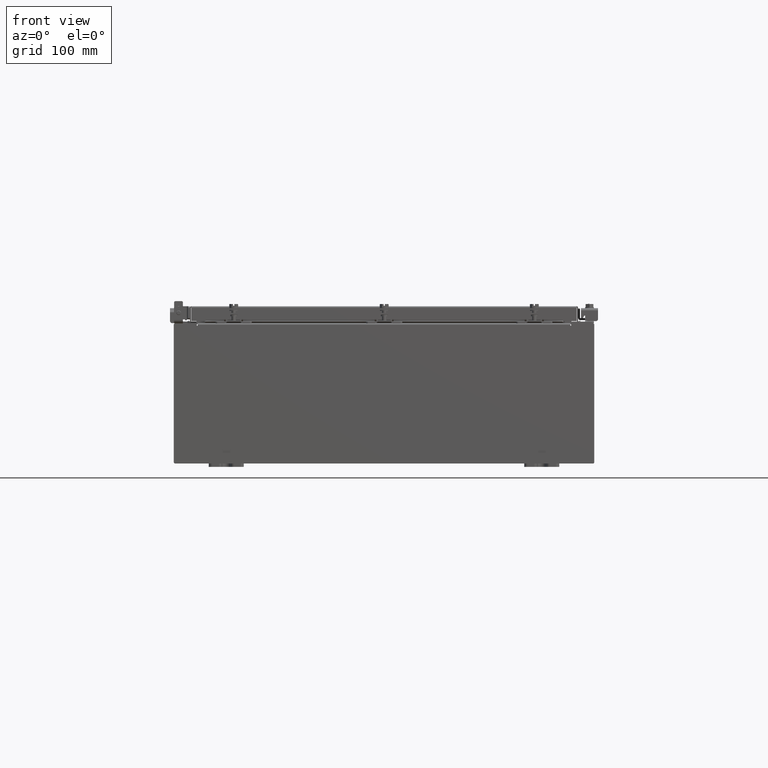
[diagram: clean part render]
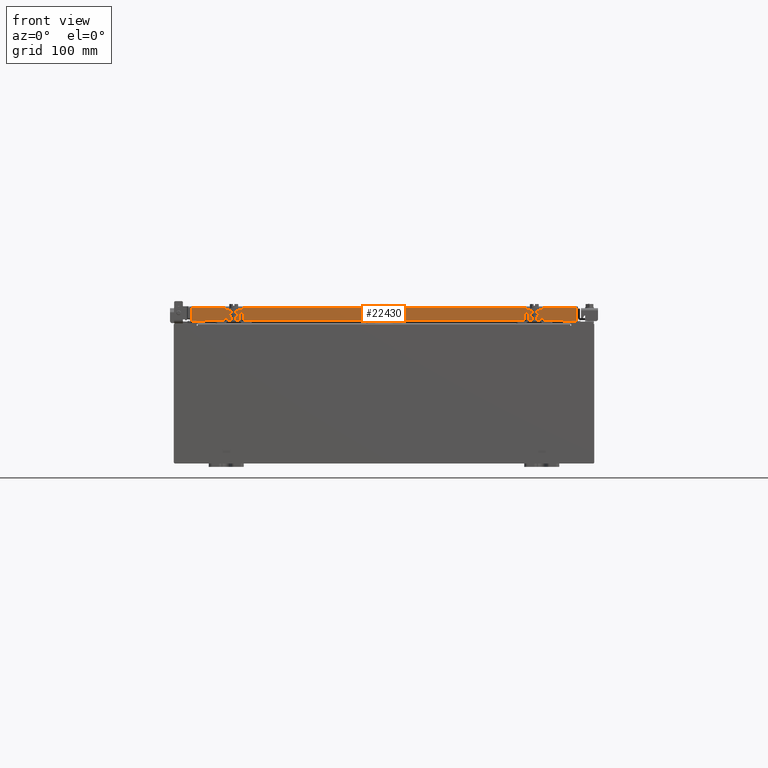
[diagram: same view with one face highlighted and labeled with its STEP entity id]
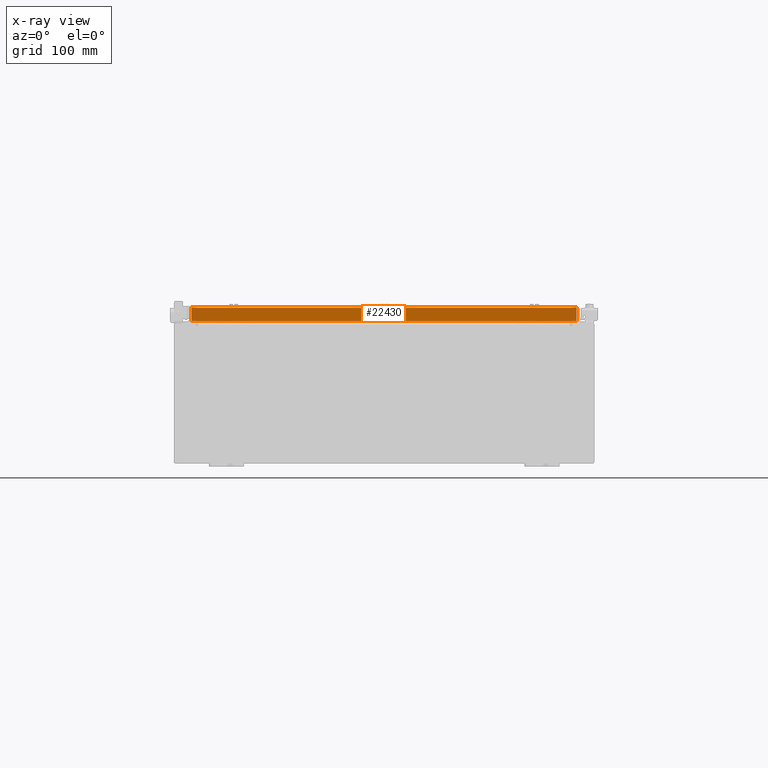
[diagram: x-ray of the same camera — body ghosted, the highlighted face saturated]
A machine part, front view. The second image highlights one B-rep face of the part: STEP entity #22430.
The next image is the same camera in x-ray: the body ghosted, the highlighted face saturated — about 0% of this face is hidden behind the body in this view.
In plain terms, the highlighted planar face has unit normal (0, 1, -0).
Its self-contained STEP definition (entity closure, byte-faithful):
#55 = CARTESIAN_POINT ( 'NONE',  ( -10.98915786437626700, -14.09399999999999900, -0.08770000000000224800 ) ) ;
#90 = VERTEX_POINT ( 'NONE', #55 ) ;
#518 = CARTESIAN_POINT ( 'NONE',  ( 10.23915786437626700, -14.09399999999999900, -0.8500000000000012000 ) ) ;
#712 = DIRECTION ( 'NONE',  ( 9.864047639155998000E-017, 1.000000000000000000, -2.818880942772360500E-015 ) ) ;
#1005 = VERTEX_POINT ( 'NONE', #17780 ) ;
#1526 = VERTEX_POINT ( 'NONE', #6283 ) ;
#2658 = EDGE_LOOP ( 'NONE', ( #6903, #8043, #7112, #15412, #20790, #11364 ) ) ;
#3532 = LINE ( 'NONE', #14443, #21977 ) ;
#3633 = DIRECTION ( 'NONE',  ( 0.0000000000000000000, -2.818880942772360500E-015, -1.000000000000000000 ) ) ;
#4704 = DIRECTION ( 'NONE',  ( -1.000000000000000000, 9.864047639156033700E-017, 1.233005954894504400E-016 ) ) ;
#4906 = LINE ( 'NONE', #7445, #9672 ) ;
#5194 = VERTEX_POINT ( 'NONE', #13281 ) ;
#5482 = VECTOR ( 'NONE', #4704, 39.37007874015748100 ) ;
#5999 = LINE ( 'NONE', #6621, #6565 ) ;
#6172 = LINE ( 'NONE', #15307, #15685 ) ;
#6283 = CARTESIAN_POINT ( 'NONE',  ( 10.98915786437626900, -14.09400000000000300, -0.8499999999999996400 ) ) ;
#6532 = DIRECTION ( 'NONE',  ( -1.000000000000000000, 9.864047639156033700E-017, 1.233005954894504400E-016 ) ) ;
#6565 = VECTOR ( 'NONE', #6532, 39.37007874015748100 ) ;
#6621 = CARTESIAN_POINT ( 'NONE',  ( 11.07799999999999800, -14.09400000000000300, -0.8499999999999996400 ) ) ;
#6903 = ORIENTED_EDGE ( 'NONE', *, *, #22809, .F. ) ;
#7112 = ORIENTED_EDGE ( 'NONE', *, *, #15005, .F. ) ;
#7445 = CARTESIAN_POINT ( 'NONE',  ( 11.07799999999999900, -14.09400000000000100, -0.08770000000000224800 ) ) ;
#8043 = ORIENTED_EDGE ( 'NONE', *, *, #14842, .T. ) ;
#8127 = DIRECTION ( 'NONE',  ( -1.000000000000000000, 0.0000000000000000000, 0.0000000000000000000 ) ) ;
#8520 = VERTEX_POINT ( 'NONE', #518 ) ;
#9672 = VECTOR ( 'NONE', #21650, 39.37007874015748100 ) ;
#10231 = LINE ( 'NONE', #15401, #5482 ) ;
#11066 = EDGE_CURVE ( 'NONE', #1526, #8520, #5999, .T. ) ;
#11364 = ORIENTED_EDGE ( 'NONE', *, *, #22190, .F. ) ;
#12178 = LINE ( 'NONE', #21438, #16358 ) ;
#12455 = AXIS2_PLACEMENT_3D ( 'NONE', #13162, #712, #13243 ) ;
#12763 = VERTEX_POINT ( 'NONE', #20049 ) ;
#13162 = CARTESIAN_POINT ( 'NONE',  ( -1.390238874262646300E-015, -14.09399999999999900, 3.999012166344522900E-014 ) ) ;
#13243 = DIRECTION ( 'NONE',  ( 0.0000000000000000000, 2.818880942772360500E-015, 1.000000000000000000 ) ) ;
#13281 = CARTESIAN_POINT ( 'NONE',  ( -10.23915786437626900, -14.09399999999999900, -0.8500000000000012000 ) ) ;
#14443 = CARTESIAN_POINT ( 'NONE',  ( -10.98915786437626900, -14.09399999999999900, 3.999012166344522900E-014 ) ) ;
#14842 = EDGE_CURVE ( 'NONE', #90, #12763, #3532, .T. ) ;
#15005 = EDGE_CURVE ( 'NONE', #5194, #12763, #10231, .T. ) ;
#15307 = CARTESIAN_POINT ( 'NONE',  ( 10.23915786437626900, -14.09399999999999900, -0.8500000000000012000 ) ) ;
#15401 = CARTESIAN_POINT ( 'NONE',  ( 11.07799999999999800, -14.09400000000000300, -0.8499999999999996400 ) ) ;
#15412 = ORIENTED_EDGE ( 'NONE', *, *, #18330, .F. ) ;
#15685 = VECTOR ( 'NONE', #8127, 39.37007874015748100 ) ;
#16358 = VECTOR ( 'NONE', #3633, 39.37007874015748100 ) ;
#17210 = FACE_OUTER_BOUND ( 'NONE', #2658, .T. ) ;
#17780 = CARTESIAN_POINT ( 'NONE',  ( 10.98915786437624400, -14.09400000000000100, -0.08770000000000224800 ) ) ;
#18330 = EDGE_CURVE ( 'NONE', #8520, #5194, #6172, .T. ) ;
#19860 = DIRECTION ( 'NONE',  ( 0.0000000000000000000, -2.818880942772360500E-015, -1.000000000000000000 ) ) ;
#20049 = CARTESIAN_POINT ( 'NONE',  ( -10.98915786437626900, -14.09400000000000100, -0.8499999999999969800 ) ) ;
#20790 = ORIENTED_EDGE ( 'NONE', *, *, #11066, .F. ) ;
#21438 = CARTESIAN_POINT ( 'NONE',  ( 10.98915786437626900, -14.09400000000000100, -0.07469999999999978000 ) ) ;
#21650 = DIRECTION ( 'NONE',  ( 1.000000000000000000, -9.864047639155999200E-017, -9.196021172131615100E-046 ) ) ;
#21977 = VECTOR ( 'NONE', #19860, 39.37007874015748100 ) ;
#22124 = PLANE ( 'NONE',  #12455 ) ;
#22190 = EDGE_CURVE ( 'NONE', #1005, #1526, #12178, .T. ) ;
#22430 = ADVANCED_FACE ( 'NONE', ( #17210 ), #22124, .F. ) ;
#22809 = EDGE_CURVE ( 'NONE', #90, #1005, #4906, .T. ) ;